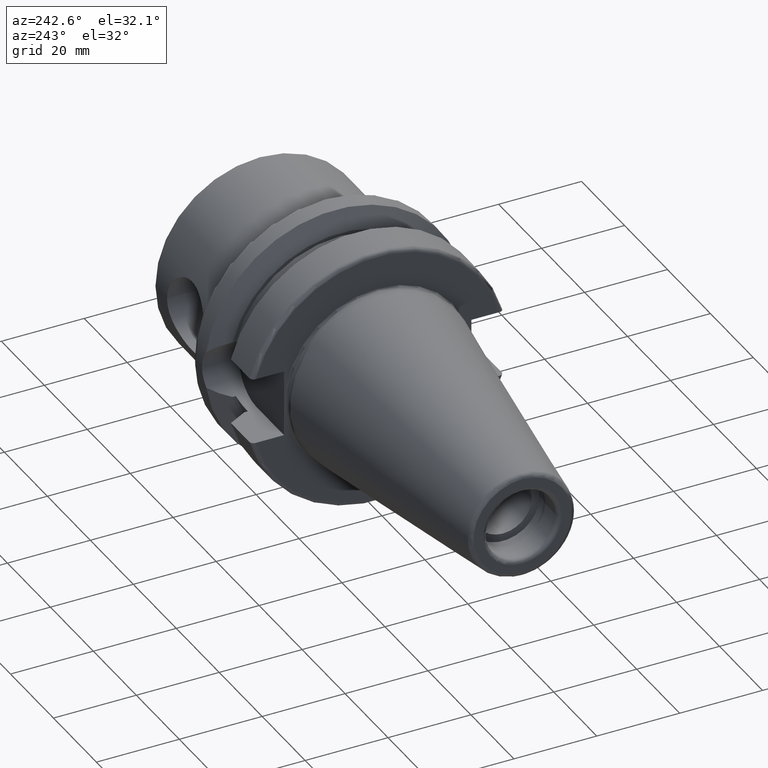
[diagram: clean part render]
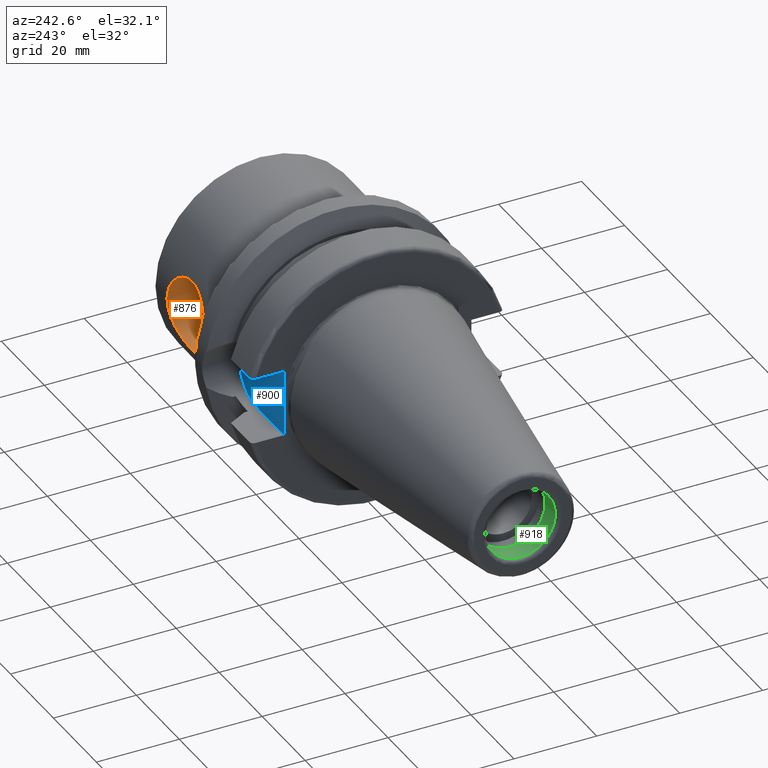
[diagram: same view with three faces highlighted in distinct colors, each labeled with its STEP entity id]
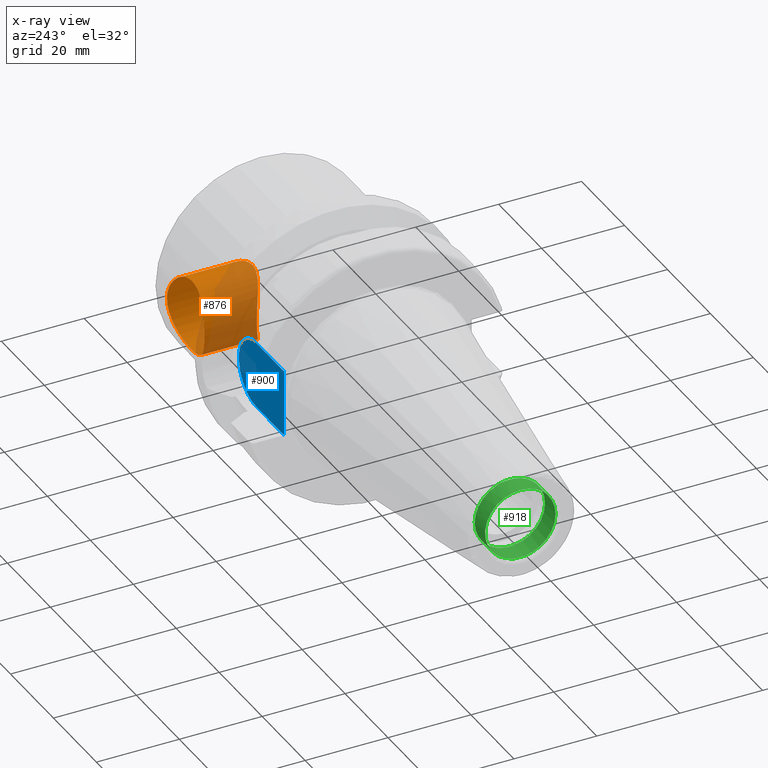
[diagram: x-ray of the same camera — body ghosted, the three highlighted faces saturated]
A machine part, auxiliary view with three faces highlighted in distinct colors.
The next image is the same camera in x-ray (body ghosted, the three faces saturated) — at least one of them is partly hidden behind the body in this view.
Their STEP definitions:

[orange] entity #876 — the highlighted cylindrical surface (bore or boss wall) has radius 8.6614 mm, axis along (0, 1, 0).
#29=B_SPLINE_CURVE_WITH_KNOTS('',3,(#1367,#1368,#1369,#1370,#1371,#1372,
#1373,#1374,#1375,#1376,#1377,#1378,#1379,#1380),.UNSPECIFIED.,.F.,.F.,
(4,2,2,2,2,2,4),(0.,0.230210178352453,0.460420356704906,0.693083526853888,
0.92574669700287,1.13302634981961,1.34030600263635),.UNSPECIFIED.);
#30=B_SPLINE_CURVE_WITH_KNOTS('',3,(#1381,#1382,#1383,#1384,#1385,#1386,
#1387,#1388,#1389,#1390,#1391,#1392,#1393,#1394,#1395,#1396,#1397,#1398,
#1399,#1400,#1401,#1402,#1403,#1404,#1405,#1406,#1407,#1408,#1409,#1410,
#1411,#1412,#1413,#1414,#1415,#1416,#1417,#1418),.UNSPECIFIED.,.F.,.F.,
(4,2,2,2,2,2,2,2,2,2,2,2,2,2,2,2,2,2,4),(1.34030600263635,1.54758565545309,
1.75486530826983,1.98752847841881,2.22019164856779,2.45040182692025,2.6806120052727,
2.91082218362515,3.14103236197761,3.37369553212659,3.60635870227557,3.81363835509231,
4.02091800790905,4.22819766072579,4.43547731354253,4.66814048369151,4.9008036538405,
5.13101383219295,5.3612240105454),.UNSPECIFIED.);
#31=B_SPLINE_CURVE_WITH_KNOTS('',3,(#1445,#1446,#1447,#1448,#1449,#1450,
#1451,#1452,#1453,#1454,#1455,#1456,#1457,#1458,#1459,#1460,#1461,#1462),
 .UNSPECIFIED.,.F.,.F.,(4,2,2,2,2,2,2,2,4),(1.31655491402046,1.64560958511095,
1.97466425620143,2.30388704212118,2.63310982804092,2.96233261396066,3.2915553998804,
3.62061007097089,3.94966474206138),.UNSPECIFIED.);
#32=B_SPLINE_CURVE_WITH_KNOTS('',3,(#1463,#1464,#1465,#1466,#1467,#1468,
#1469,#1470,#1471,#1472,#1473,#1474,#1475,#1476,#1477,#1478,#1479,#1480,
#1481),.UNSPECIFIED.,.F.,.F.,(4,2,2,2,3,2,2,2,4),(3.94966474206138,4.27871941315187,
4.60777408424235,4.9369968701621,5.26621965608184,5.59544244200158,5.92466522792132,
6.25371989901181,6.5827745701023),.UNSPECIFIED.);
#51=LINE('',#1490,#97);
#97=VECTOR('',#1126,8.6614);
#142=CYLINDRICAL_SURFACE('',#972,8.6614);
#193=FACE_OUTER_BOUND('',#251,.T.);
#251=EDGE_LOOP('',(#635,#636,#637,#638,#639,#640));
#372=VERTEX_POINT('',#1365);
#373=VERTEX_POINT('',#1366);
#382=VERTEX_POINT('',#1443);
#383=VERTEX_POINT('',#1444);
#462=EDGE_CURVE('',#372,#373,#29,.T.);
#463=EDGE_CURVE('',#373,#372,#30,.T.);
#476=EDGE_CURVE('',#382,#383,#31,.T.);
#477=EDGE_CURVE('',#383,#382,#32,.T.);
#481=EDGE_CURVE('',#383,#373,#51,.T.);
#635=ORIENTED_EDGE('',*,*,#476,.F.);
#636=ORIENTED_EDGE('',*,*,#477,.F.);
#637=ORIENTED_EDGE('',*,*,#481,.T.);
#638=ORIENTED_EDGE('',*,*,#462,.F.);
#639=ORIENTED_EDGE('',*,*,#463,.F.);
#640=ORIENTED_EDGE('',*,*,#481,.F.);
#876=ADVANCED_FACE('',(#193),#142,.F.);
#972=AXIS2_PLACEMENT_3D('',#1489,#1124,#1125);
#1124=DIRECTION('center_axis',(0.,1.,0.));
#1125=DIRECTION('ref_axis',(-1.,0.,0.));
#1126=DIRECTION('',(0.,-1.,0.));
#1365=CARTESIAN_POINT('',(42.4,9.28817258883576,8.6614));
#1366=CARTESIAN_POINT('',(51.0614,12.7,-2.05691444816633E-15));
#1367=CARTESIAN_POINT('Ctrl Pts',(42.4,9.28817258883576,8.6614));
#1368=CARTESIAN_POINT('Ctrl Pts',(43.1673672611748,9.28817258883576,8.6614));
#1369=CARTESIAN_POINT('Ctrl Pts',(43.9858957782378,9.39286972665493,8.55264024866676));
#1370=CARTESIAN_POINT('Ctrl Pts',(45.5289519262639,9.77247370980056,8.11618127426884));
#1371=CARTESIAN_POINT('Ctrl Pts',(46.2552534395171,10.0411649414725,7.78937187446292));
#1372=CARTESIAN_POINT('Ctrl Pts',(47.4939623257863,10.5784623099762,7.04272156428609));
#1373=CARTESIAN_POINT('Ctrl Pts',(48.1132967484189,10.8953979926107,6.55686730549501));
#1374=CARTESIAN_POINT('Ctrl Pts',(49.1976135123252,11.5011078891644,5.42464029111456));
#1375=CARTESIAN_POINT('Ctrl Pts',(49.6628587501108,11.7874735866629,4.777232351146));
#1376=CARTESIAN_POINT('Ctrl Pts',(50.3313550647032,12.2113564696458,3.54273323733867));
#1377=CARTESIAN_POINT('Ctrl Pts',(50.6076602743295,12.3942512400347,2.86281353694394));
#1378=CARTESIAN_POINT('Ctrl Pts',(50.9729902801836,12.6391431201531,1.43708957909458));
#1379=CARTESIAN_POINT('Ctrl Pts',(51.0614,12.7,0.690932176055798));
#1380=CARTESIAN_POINT('Ctrl Pts',(51.0614,12.7,-2.22044604925031E-15));
#1381=CARTESIAN_POINT('Ctrl Pts',(51.0614,12.7,-3.05311331771918E-15));
#1382=CARTESIAN_POINT('Ctrl Pts',(51.0614,12.7,-0.690932176055802));
#1383=CARTESIAN_POINT('Ctrl Pts',(50.9729902801836,12.6391431201531,-1.43708957909458));
#1384=CARTESIAN_POINT('Ctrl Pts',(50.6076602743295,12.3942512400347,-2.86281353694394));
#1385=CARTESIAN_POINT('Ctrl Pts',(50.3313550647033,12.2113564696458,-3.54273323733867));
#1386=CARTESIAN_POINT('Ctrl Pts',(49.6628587501109,11.7874735866629,-4.777232351146));
#1387=CARTESIAN_POINT('Ctrl Pts',(49.1976135123252,11.5011078891644,-5.42464029111456));
#1388=CARTESIAN_POINT('Ctrl Pts',(48.1132967484189,10.8953979926107,-6.55686730549501));
#1389=CARTESIAN_POINT('Ctrl Pts',(47.4939623257863,10.5784623099762,-7.04272156428609));
#1390=CARTESIAN_POINT('Ctrl Pts',(46.2552534395171,10.0411649414725,-7.78937187446292));
#1391=CARTESIAN_POINT('Ctrl Pts',(45.5289519262639,9.77247370980056,-8.11618127426884));
#1392=CARTESIAN_POINT('Ctrl Pts',(43.9858957782378,9.39286972665493,-8.55264024866676));
#1393=CARTESIAN_POINT('Ctrl Pts',(43.1673672611748,9.28817258883576,-8.6614));
#1394=CARTESIAN_POINT('Ctrl Pts',(41.6326327388252,9.28817258883576,-8.6614));
#1395=CARTESIAN_POINT('Ctrl Pts',(40.8141042217622,9.39286972665493,-8.55264024866676));
#1396=CARTESIAN_POINT('Ctrl Pts',(39.2710480737361,9.77247370980056,-8.11618127426884));
#1397=CARTESIAN_POINT('Ctrl Pts',(38.5447465604828,10.0411649414725,-7.78937187446292));
#1398=CARTESIAN_POINT('Ctrl Pts',(37.3060376742137,10.5784623099762,-7.04272156428609));
#1399=CARTESIAN_POINT('Ctrl Pts',(36.6867032515811,10.8953979926107,-6.55686730549501));
#1400=CARTESIAN_POINT('Ctrl Pts',(35.6023864876748,11.5011078891644,-5.42464029111456));
#1401=CARTESIAN_POINT('Ctrl Pts',(35.1371412498891,11.7874735866629,-4.777232351146));
#1402=CARTESIAN_POINT('Ctrl Pts',(34.4686449352967,12.2113564696458,-3.54273323733867));
#1403=CARTESIAN_POINT('Ctrl Pts',(34.1923397256705,12.3942512400347,-2.86281353694394));
#1404=CARTESIAN_POINT('Ctrl Pts',(33.8270097198164,12.6391431201531,-1.43708957909458));
#1405=CARTESIAN_POINT('Ctrl Pts',(33.7386,12.7,-0.690932176055801));
#1406=CARTESIAN_POINT('Ctrl Pts',(33.7386,12.7,0.690932176055798));
#1407=CARTESIAN_POINT('Ctrl Pts',(33.8270097198164,12.6391431201531,1.43708957909458));
#1408=CARTESIAN_POINT('Ctrl Pts',(34.1923397256705,12.3942512400347,2.86281353694394));
#1409=CARTESIAN_POINT('Ctrl Pts',(34.4686449352967,12.2113564696458,3.54273323733867));
#1410=CARTESIAN_POINT('Ctrl Pts',(35.1371412498891,11.7874735866629,4.77723235114599));
#1411=CARTESIAN_POINT('Ctrl Pts',(35.6023864876748,11.5011078891644,5.42464029111456));
#1412=CARTESIAN_POINT('Ctrl Pts',(36.6867032515811,10.8953979926107,6.55686730549501));
#1413=CARTESIAN_POINT('Ctrl Pts',(37.3060376742137,10.5784623099762,7.04272156428609));
#1414=CARTESIAN_POINT('Ctrl Pts',(38.5447465604828,10.0411649414725,7.78937187446292));
#1415=CARTESIAN_POINT('Ctrl Pts',(39.2710480737361,9.77247370980056,8.11618127426884));
#1416=CARTESIAN_POINT('Ctrl Pts',(40.8141042217622,9.39286972665493,8.55264024866676));
#1417=CARTESIAN_POINT('Ctrl Pts',(41.6326327388252,9.28817258883576,8.6614));
#1418=CARTESIAN_POINT('Ctrl Pts',(42.4,9.28817258883576,8.6614));
#1443=CARTESIAN_POINT('',(33.7386,25.4,0.));
#1444=CARTESIAN_POINT('',(51.0614,25.4,0.));
#1445=CARTESIAN_POINT('Ctrl Pts',(33.7386,25.4,0.));
#1446=CARTESIAN_POINT('Ctrl Pts',(33.7386,25.4,-1.09684890363496));
#1447=CARTESIAN_POINT('Ctrl Pts',(33.9595948169007,25.3220031940979,-2.26094524708732));
#1448=CARTESIAN_POINT('Ctrl Pts',(34.8463153214761,25.0403985621892,-4.39251169936721));
#1449=CARTESIAN_POINT('Ctrl Pts',(35.5115750791868,24.8403510547288,-5.3606444283251));
#1450=CARTESIAN_POINT('Ctrl Pts',(37.0397458450538,24.4606706295937,-6.88881519419209));
#1451=CARTESIAN_POINT('Ctrl Pts',(38.0077239172898,24.2552791261336,-7.55377494668732));
#1452=CARTESIAN_POINT('Ctrl Pts',(40.1387139037547,23.9612169082044,-8.44027113836589));
#1453=CARTESIAN_POINT('Ctrl Pts',(41.3025907136008,23.8776077118291,-8.6614));
#1454=CARTESIAN_POINT('Ctrl Pts',(43.4974092863991,23.8776077118291,-8.6614));
#1455=CARTESIAN_POINT('Ctrl Pts',(44.6612860962453,23.9612169082044,-8.44027113836589));
#1456=CARTESIAN_POINT('Ctrl Pts',(46.7922760827102,24.2552791261336,-7.55377494668733));
#1457=CARTESIAN_POINT('Ctrl Pts',(47.7602541549462,24.4606706295937,-6.88881519419209));
#1458=CARTESIAN_POINT('Ctrl Pts',(49.2884249208132,24.8403510547288,-5.3606444283251));
#1459=CARTESIAN_POINT('Ctrl Pts',(49.9536846785238,25.0403985621892,-4.39251169936721));
#1460=CARTESIAN_POINT('Ctrl Pts',(50.8404051830993,25.3220031940979,-2.26094524708732));
#1461=CARTESIAN_POINT('Ctrl Pts',(51.0614,25.4,-1.09684890363496));
#1462=CARTESIAN_POINT('Ctrl Pts',(51.0614,25.4,-1.94289029309402E-15));
#1463=CARTESIAN_POINT('Ctrl Pts',(51.0614,25.4,2.77555756156289E-16));
#1464=CARTESIAN_POINT('Ctrl Pts',(51.0614,25.4,1.09684890363496));
#1465=CARTESIAN_POINT('Ctrl Pts',(50.8404051830993,25.3220031940979,2.26094524708732));
#1466=CARTESIAN_POINT('Ctrl Pts',(49.9536846785238,25.0403985621892,4.3925116993672));
#1467=CARTESIAN_POINT('Ctrl Pts',(49.2884249208132,24.8403510547288,5.3606444283251));
#1468=CARTESIAN_POINT('Ctrl Pts',(47.7602541549462,24.4606706295937,6.88881519419208));
#1469=CARTESIAN_POINT('Ctrl Pts',(46.7922760827102,24.2552791261336,7.55377494668732));
#1470=CARTESIAN_POINT('Ctrl Pts',(44.6612860962453,23.9612169082044,8.44027113836589));
#1471=CARTESIAN_POINT('Ctrl Pts',(43.4974092863991,23.8776077118291,8.6614));
#1472=CARTESIAN_POINT('Ctrl Pts',(42.4,23.8776077118291,8.6614));
#1473=CARTESIAN_POINT('Ctrl Pts',(41.3025907136008,23.8776077118291,8.6614));
#1474=CARTESIAN_POINT('Ctrl Pts',(40.1387139037547,23.9612169082044,8.44027113836589));
#1475=CARTESIAN_POINT('Ctrl Pts',(38.0077239172898,24.2552791261336,7.55377494668732));
#1476=CARTESIAN_POINT('Ctrl Pts',(37.0397458450538,24.4606706295937,6.88881519419209));
#1477=CARTESIAN_POINT('Ctrl Pts',(35.5115750791868,24.8403510547288,5.3606444283251));
#1478=CARTESIAN_POINT('Ctrl Pts',(34.8463153214761,25.0403985621892,4.39251169936721));
#1479=CARTESIAN_POINT('Ctrl Pts',(33.9595948169007,25.3220031940979,2.26094524708732));
#1480=CARTESIAN_POINT('Ctrl Pts',(33.7386,25.4,1.09684890363496));
#1481=CARTESIAN_POINT('Ctrl Pts',(33.7386,25.4,0.));
#1489=CARTESIAN_POINT('Origin',(42.4,11.631,0.));
#1490=CARTESIAN_POINT('',(51.0614,11.631,-1.06071557861349E-15));

[blue] entity #900 — the highlighted planar face has unit normal (0, 1, 0).
#81=LINE('',#1722,#127);
#86=LINE('',#1746,#132);
#87=LINE('',#1748,#133);
#127=VECTOR('',#1242,10.);
#132=VECTOR('',#1249,10.);
#133=VECTOR('',#1252,10.);
#178=PLANE('',#1017);
#217=FACE_OUTER_BOUND('',#278,.T.);
#278=EDGE_LOOP('',(#763,#764,#765,#766));
#341=CIRCLE('',#1014,8.05);
#429=VERTEX_POINT('',#1697);
#430=VERTEX_POINT('',#1699);
#435=VERTEX_POINT('',#1721);
#440=VERTEX_POINT('',#1744);
#543=EDGE_CURVE('',#430,#429,#341,.T.);
#549=EDGE_CURVE('',#435,#430,#81,.T.);
#556=EDGE_CURVE('',#429,#440,#86,.T.);
#557=EDGE_CURVE('',#435,#440,#87,.T.);
#763=ORIENTED_EDGE('',*,*,#556,.T.);
#764=ORIENTED_EDGE('',*,*,#557,.F.);
#765=ORIENTED_EDGE('',*,*,#549,.T.);
#766=ORIENTED_EDGE('',*,*,#543,.T.);
#900=ADVANCED_FACE('',(#217),#178,.T.);
#1014=AXIS2_PLACEMENT_3D('',#1700,#1235,#1236);
#1017=AXIS2_PLACEMENT_3D('',#1747,#1250,#1251);
#1235=DIRECTION('center_axis',(0.,1.,0.));
#1236=DIRECTION('ref_axis',(0.,0.,1.));
#1242=DIRECTION('',(1.,0.,8.57315076930623E-17));
#1249=DIRECTION('',(-1.,0.,-8.57315076930623E-17));
#1250=DIRECTION('center_axis',(0.,1.,0.));
#1251=DIRECTION('ref_axis',(0.,0.,1.));
#1252=DIRECTION('',(0.,0.,-1.));
#1697=CARTESIAN_POINT('',(14.95,22.6,-8.05));
#1699=CARTESIAN_POINT('',(14.95,22.6,8.05));
#1700=CARTESIAN_POINT('Origin',(14.95,22.6,0.));
#1721=CARTESIAN_POINT('',(1.99999999999999,22.6,8.05));
#1722=CARTESIAN_POINT('',(1.99999999999999,22.6,8.05));
#1744=CARTESIAN_POINT('',(1.99999999999999,22.6,-8.05));
#1746=CARTESIAN_POINT('',(14.95,22.6,-8.05));
#1747=CARTESIAN_POINT('Origin',(12.5,22.6,0.));
#1748=CARTESIAN_POINT('',(1.99999999999999,22.6,0.));

[green] entity #918 — the highlighted cylindrical surface (bore or boss wall) has radius 8.5 mm, axis along (1, 0, 0).
#93=LINE('',#1805,#139);
#139=VECTOR('',#1336,8.5);
#155=CYLINDRICAL_SURFACE('',#1056,8.5);
#235=FACE_OUTER_BOUND('',#298,.T.);
#298=EDGE_LOOP('',(#845,#846,#847,#848,#849));
#362=CIRCLE('',#1055,8.5);
#363=CIRCLE('',#1057,8.5);
#364=CIRCLE('',#1058,8.5);
#451=VERTEX_POINT('',#1800);
#452=VERTEX_POINT('',#1804);
#453=VERTEX_POINT('',#1806);
#583=EDGE_CURVE('',#451,#451,#362,.T.);
#584=EDGE_CURVE('',#451,#452,#93,.T.);
#585=EDGE_CURVE('',#453,#452,#363,.T.);
#586=EDGE_CURVE('',#452,#453,#364,.T.);
#845=ORIENTED_EDGE('',*,*,#583,.T.);
#846=ORIENTED_EDGE('',*,*,#584,.T.);
#847=ORIENTED_EDGE('',*,*,#585,.F.);
#848=ORIENTED_EDGE('',*,*,#586,.F.);
#849=ORIENTED_EDGE('',*,*,#584,.F.);
#918=ADVANCED_FACE('',(#235),#155,.F.);
#1055=AXIS2_PLACEMENT_3D('',#1802,#1332,#1333);
#1056=AXIS2_PLACEMENT_3D('',#1803,#1334,#1335);
#1057=AXIS2_PLACEMENT_3D('',#1807,#1337,#1338);
#1058=AXIS2_PLACEMENT_3D('',#1808,#1339,#1340);
#1332=DIRECTION('center_axis',(1.,0.,0.));
#1333=DIRECTION('ref_axis',(0.,0.,-1.));
#1334=DIRECTION('center_axis',(1.,0.,0.));
#1335=DIRECTION('ref_axis',(0.,1.,0.));
#1336=DIRECTION('',(-1.,0.,0.));
#1337=DIRECTION('center_axis',(1.,0.,0.));
#1338=DIRECTION('ref_axis',(0.,0.,-1.));
#1339=DIRECTION('center_axis',(1.,0.,0.));
#1340=DIRECTION('ref_axis',(0.,0.,-1.));
#1800=CARTESIAN_POINT('',(-59.5196152422707,-8.5,-1.04094977927525E-15));
#1802=CARTESIAN_POINT('Origin',(-59.5196152422707,0.,0.));
#1803=CARTESIAN_POINT('Origin',(-61.9598076211353,0.,0.));
#1804=CARTESIAN_POINT('',(-64.4,-8.5,-1.04094977927525E-15));
#1805=CARTESIAN_POINT('',(-61.9598076211353,-8.5,-1.04094977927525E-15));
#1806=CARTESIAN_POINT('',(-64.4,-1.04094977927525E-15,8.5));
#1807=CARTESIAN_POINT('Origin',(-64.4,0.,0.));
#1808=CARTESIAN_POINT('Origin',(-64.4,0.,0.));